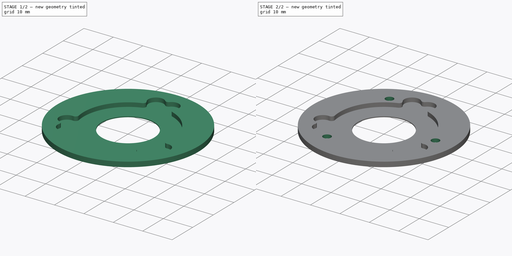
[diagram: build sequence overview — one tinted view per stage of 2, left to right]
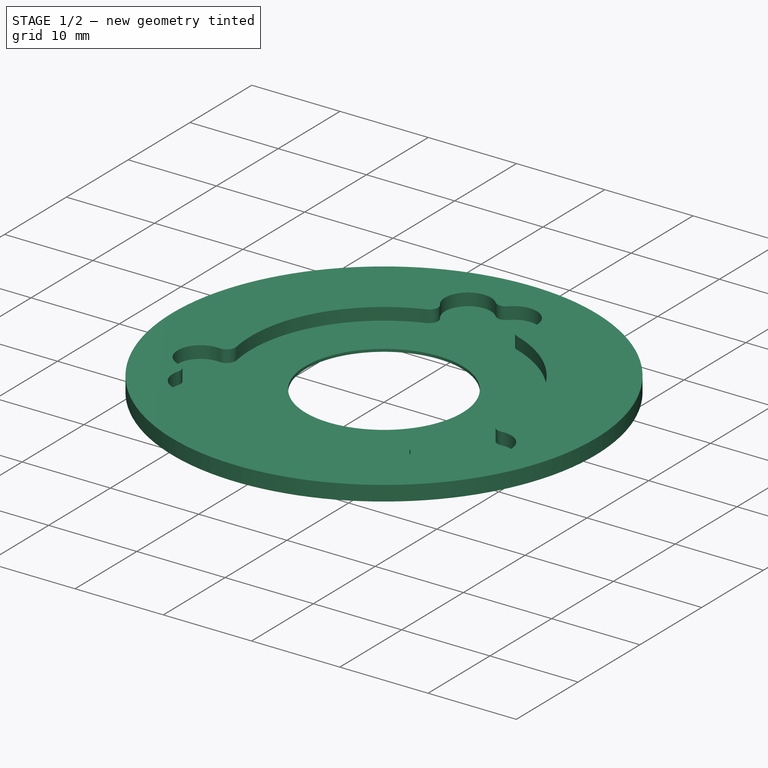
[diagram: stage 1 of 2 — iso view after this stage's code; geometry added in this stage tinted green]
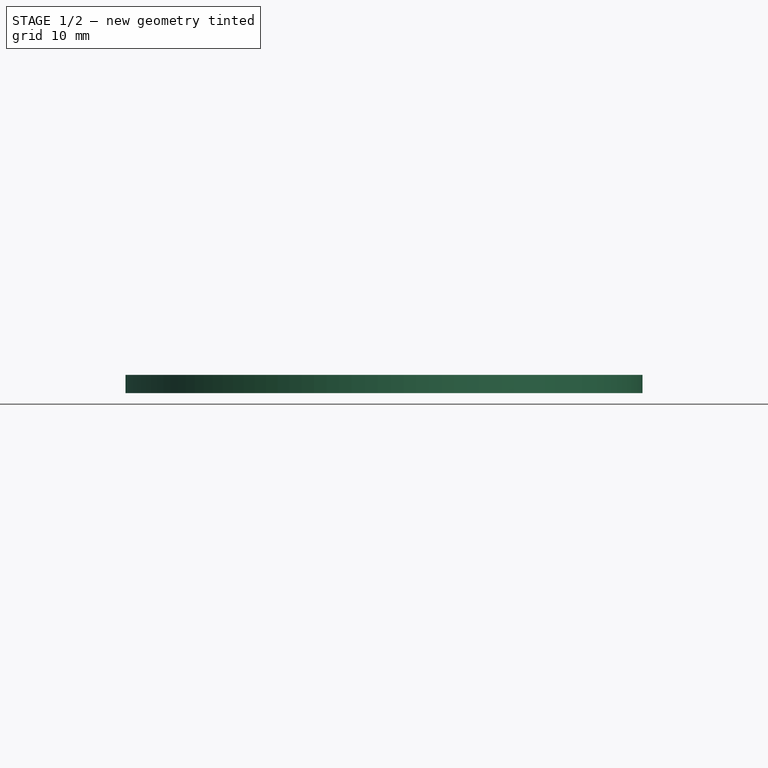
[diagram: stage 1 of 2 — front view after this stage's code; geometry added in this stage tinted green]
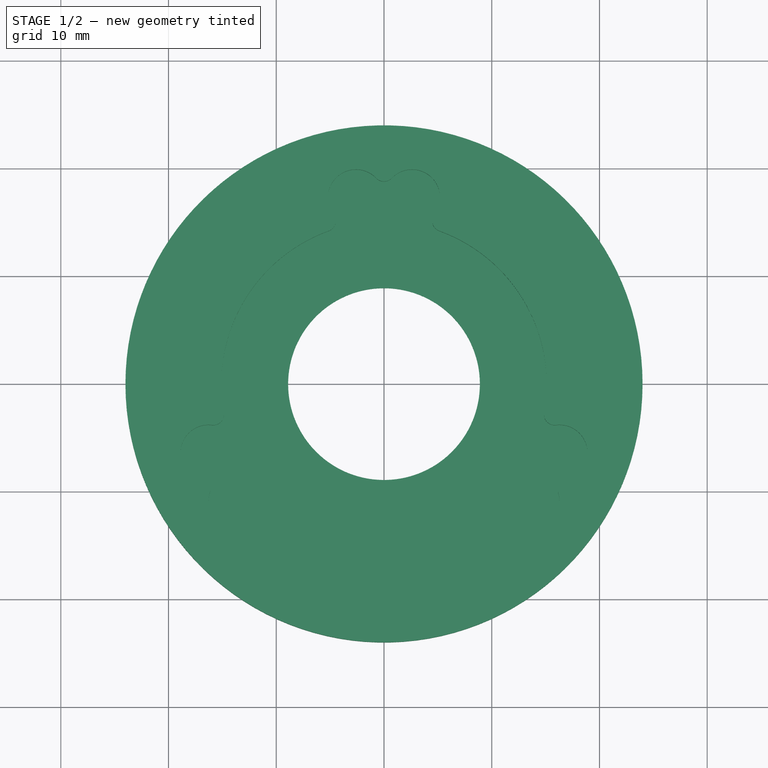
[diagram: stage 1 of 2 — top view after this stage's code; geometry added in this stage tinted green]
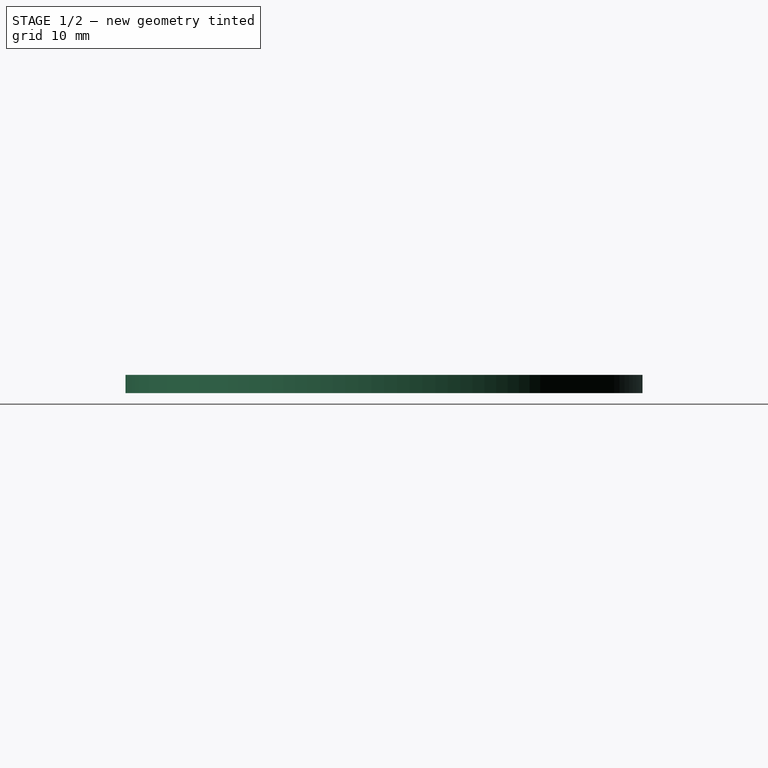
[diagram: stage 1 of 2 — right view after this stage's code; geometry added in this stage tinted green]
FCSTD DOCUMENT  (FreeCAD 0.22R37841 (Git))
Label: magcartrige
License: All rights reserved
LicenseURL: http://en.wikipedia.org/wiki/All_rights_reserved
objects: Sketcher::SketchObject×3, PartDesign::CoordinateSystem×2, PartDesign::Revolution×1, PartDesign::Pocket×1, PartDesign::Hole×1, PartDesign::Body×1, App::Part×1
note: 12 computed .brp shape members not serialized (recipe doc carries the construction recipe); baked Part::Feature solids carry a one-line shape summary decoded from their .brp

FEATURE [PartDesign::CoordinateSystem] LCS_Origin
  AttacherType = Attacher::AttachEngine3D
  AttachmentSupport = -> [X_Axis]
  MapMode = 2
FEATURE [PartDesign::CoordinateSystem] LCS_Origin001
  AttacherType = Attacher::AttachEngine3D
  AttachmentSupport = -> [X_Axis001]
  MapMode = 2
FEATURE [Sketcher::SketchObject] Sketch
  AttachmentSupport = -> [XZ_Plane001]
  FullyConstrained = true
  MapMode = 5
  Placement = pos=(0,0,0) rot=(1,0,0;1.5708rad)
  sketch-geometry (5):
    g0: LineSegment StartX=0 StartY=0 StartZ=0 EndX=0 EndY=1.7 EndZ=0
    g1: LineSegment StartX=8.9 StartY=0 StartZ=0 EndX=8.9 EndY=1.7 EndZ=0
    g2: LineSegment StartX=24 StartY=0 StartZ=0 EndX=8.9 EndY=0 EndZ=0
    g3: LineSegment StartX=24 StartY=1.7 StartZ=0 EndX=24 EndY=0 EndZ=0
    g4: LineSegment StartX=8.9 StartY=1.7 StartZ=0 EndX=24 EndY=1.7 EndZ=0
  constraints (15):
    c: Coincident(g0,g-1)
    c: PointOnObject(g0,g-2)
    c: PointOnObject(g1,g-1)
    c: PointOnObject(g2,g-1)
    c: Coincident(g2,g1)
    c: Vertical(g1)
    c: DistanceX(g0,g1) = 8.9
    c: DistanceX(g0,g2) = 24
    c: Coincident(g3,g2)
    c: Vertical(g3)
    c: Coincident(g4,g1)
    c: Horizontal(g4)
    c: DistanceY(g3,g3) = 1.7
    c: PointOnObject(g0,g4)
    c: Coincident(g4,g3)
FEATURE [PartDesign::Revolution] Revolution
  Angle = 360
  Angle2 = 60
  Axis = (0,2e-16,1)
  Base = (0,0,0)
  Placement = pos=(0,0,0) rot=(1,0,0;1.5708rad)
  Profile = -> Sketch
  ReferenceAxis = -> Sketch [V_Axis]
  Reversed = true
  Suppressed = false
  Type = 0
FEATURE [Sketcher::SketchObject] Sketch001
  AttachmentOffset = pos=(0,0,0.3) rot=(0,0,1;0rad)
  AttachmentSupport = -> [XY_Plane001]
  FullyConstrained = true
  MapMode = 5
  Placement = pos=(0,0,0.3) rot=(0,0,1;0rad)
  sketch-geometry (25):
    g0: LineSegment StartX=16.2872 StartY=-6.40122 StartZ=0 EndX=2.6 EndY=17.3058 EndZ=0
    g1: LineSegment StartX=2.6 StartY=17.3058 StartZ=0 EndX=-2.6 EndY=17.3058 EndZ=0
    g2: LineSegment StartX=-2.6 StartY=17.3058 StartZ=0 EndX=-16.2872 EndY=-6.40122 EndZ=0
    g3: LineSegment StartX=-16.2872 StartY=-6.40122 StartZ=0 EndX=-13.6872 EndY=-10.9046 EndZ=0
    g4: LineSegment StartX=-13.6872 StartY=-10.9046 StartZ=0 EndX=13.6872 EndY=-10.9046 EndZ=0
    g5: LineSegment StartX=13.6872 StartY=-10.9046 StartZ=0 EndX=16.2872 EndY=-6.40122 EndZ=0
    g6: Circle CenterX=0 CenterY=0 CenterZ=0 NormalX=0 NormalY=0 NormalZ=1 AngleXU=0 Radius=17.5
    g7: ArcOfCircle CenterX=-16.2872 CenterY=-6.40122 CenterZ=0 NormalX=0 NormalY=0 NormalZ=1 AngleXU=0 Radius=2.6 StartAngle=1.44895 EndAngle=4.4722
    g8: ArcOfCircle CenterX=-17.1436 CenterY=-9.89788 CenterZ=0 NormalX=0 NormalY=0 NormalZ=1 AngleXU=0 Radius=1 StartAngle=5.99977 EndAngle=7.61379
    g9: ArcOfCircle CenterX=-15.8497 CenterY=-2.82791 CenterZ=0 NormalX=0 NormalY=0 NormalZ=1 AngleXU=0 Radius=1 StartAngle=4.59055 EndAngle=6.45975
    g10: ArcOfCircle CenterX=0 CenterY=0 CenterZ=0 NormalX=0 NormalY=0 NormalZ=1 AngleXU=0 Radius=15.1 StartAngle=1.91783 EndAngle=3.31816
    g11: ArcOfCircle CenterX=-2.6 CenterY=17.3058 CenterZ=0 NormalX=0 NormalY=0 NormalZ=1 AngleXU=0 Radius=2.6 StartAngle=0.763786 EndAngle=3.78703
    g12: ArcOfCircle CenterX=-5.4758 CenterY=15.1402 CenterZ=0 NormalX=0 NormalY=0 NormalZ=1 AngleXU=0 Radius=1 StartAngle=5.05943 EndAngle=6.92863
    g13: ArcOfCircle CenterX=2.6 CenterY=17.3058 CenterZ=0 NormalX=0 NormalY=0 NormalZ=1 AngleXU=0 Radius=2.6 StartAngle=5.63774 EndAngle=8.66099
    g14: ArcOfCircle CenterX=0 CenterY=0 CenterZ=0 NormalX=0 NormalY=0 NormalZ=1 AngleXU=0 Radius=15.1 StartAngle=6.10662 EndAngle=7.50695
    g15: ArcOfCircle CenterX=16.2872 CenterY=-6.40122 CenterZ=0 NormalX=0 NormalY=0 NormalZ=1 AngleXU=0 Radius=2.6 StartAngle=4.95258 EndAngle=7.97582
    g16: ArcOfCircle CenterX=13.6872 CenterY=-10.9046 CenterZ=0 NormalX=0 NormalY=0 NormalZ=1 AngleXU=0 Radius=2.6 StartAngle=3.54335 EndAngle=6.5666
    g17: ArcOfCircle CenterX=0 CenterY=0 CenterZ=0 NormalX=0 NormalY=0 NormalZ=1 AngleXU=0 Radius=15.1 StartAngle=4.01223 EndAngle=5.41255
    g18: ArcOfCircle CenterX=-13.6872 CenterY=-10.9046 CenterZ=0 NormalX=0 NormalY=0 NormalZ=1 AngleXU=0 Radius=2.6 StartAngle=2.85818 EndAngle=5.88143
    g19: ArcOfCircle CenterX=-3.2e-15 CenterY=19.7958 CenterZ=0 NormalX=0 NormalY=0 NormalZ=1 AngleXU=0 Radius=1 StartAngle=3.90538 EndAngle=5.5194
    g20: ArcOfCircle CenterX=5.4758 CenterY=15.1402 CenterZ=0 NormalX=0 NormalY=0 NormalZ=1 AngleXU=0 Radius=1 StartAngle=2.49615 EndAngle=4.36535
    g21: ArcOfCircle CenterX=15.8497 CenterY=-2.82791 CenterZ=0 NormalX=0 NormalY=0 NormalZ=1 AngleXU=0 Radius=1 StartAngle=2.96503 EndAngle=4.83423
    g22: ArcOfCircle CenterX=17.1436 CenterY=-9.89788 CenterZ=0 NormalX=0 NormalY=0 NormalZ=1 AngleXU=0 Radius=1 StartAngle=1.81098 EndAngle=3.425
    g23: ArcOfCircle CenterX=10.3739 CenterY=-12.3123 CenterZ=0 NormalX=0 NormalY=0 NormalZ=1 AngleXU=0 Radius=1 StartAngle=0.401757 EndAngle=2.27096
    g24: ArcOfCircle CenterX=-10.3739 CenterY=-12.3123 CenterZ=0 NormalX=0 NormalY=0 NormalZ=1 AngleXU=0 Radius=1 StartAngle=0.870635 EndAngle=2.73984
  constraints (65):
    c: Coincident(g0,g1)
    c: Coincident(g1,g2)
    c: Coincident(g2,g3)
    c: Coincident(g3,g4)
    c: Coincident(g4,g5)
    c: Coincident(g5,g0)
    c: PointOnObject(g0,g6)
    c: PointOnObject(g1,g6)
    c: PointOnObject(g2,g6)
    c: PointOnObject(g3,g6)
    c: PointOnObject(g4,g6)
    c: Coincident(g6,g-1)
    c: Diameter(g6) = 35
    c: Coincident(g7,g2)
    c: Coincident(g10,g6)
    c: Coincident(g11,g1)
    c: Tangent(g11,g12) = 1.5708
    c: Tangent(g10,g12) = 1.5708
    c: Coincident(g13,g0)
    c: Coincident(g14,g6)
    c: Coincident(g15,g0)
    c: Coincident(g16,g4)
    c: Coincident(g17,g6)
    c: Coincident(g18,g3)
    c: Tangent(g8,g7) = 1.5708
    c: Tangent(g9,g10) = 1.5708
    c: Tangent(g9,g7) = 1.5708
    c: Tangent(g11,g19) = 1.5708
    c: Tangent(g13,g20) = 1.5708
    c: Tangent(g14,g20) = 1.5708
    c: Tangent(g14,g21) = 1.5708
    c: Tangent(g15,g21) = 1.5708
    c: Tangent(g15,g22) = 1.5708
    c: Tangent(g16,g23) = 1.5708
    c: Tangent(g17,g23) = 1.5708
    c: Tangent(g17,g24) = 1.5708
    c: Tangent(g18,g24) = 1.5708
    c: Equal(g8,g9)
    c: Equal(g23,g24)
    c: Radius(g7) = 2.6
    c: Radius(g8) = 1
    c: Equal(g7,g11)
    c: Equal(g11,g13)
    c: Equal(g13,g15)
    c: Equal(g15,g16)
    c: Equal(g16,g18)
    c: Horizontal(g1)
    c: Tangent(g19,g13) = 1.5708
    c: PointOnObject(g0,g6)
    c: Horizontal(g4)
    c: Tangent(g13,g11)
    c: Tangent(g8,g18) = 1.5708
    c: Tangent(g16,g22) = 1.5708
    c: Tangent(g7,g18)
    c: Tangent(g15,g16)
    c: Equal(g2,g4)
    c: Equal(g17,g10)
    c: Equal(g10,g14)
    c: Equal(g8,g24)
    c: Equal(g23,g22)
    c: Equal(g22,g21)
    c: Equal(g9,g12)
    c: Equal(g12,g20)
    c: Equal(g19,g12)
    c: Radius(g14) = 15.1
FEATURE [PartDesign::Pocket] Pocket
  BaseFeature = -> Revolution
  Direction = (0,0,-1)
  Length = 5.2
  Length2 = 5
  Placement = pos=(0,0,0) rot=(1,0,0;1.5708rad)
  Profile = -> Sketch001
  ReferenceAxis = -> Sketch001 [N_Axis]
  Reversed = true
  Suppressed = false
  Type = 0
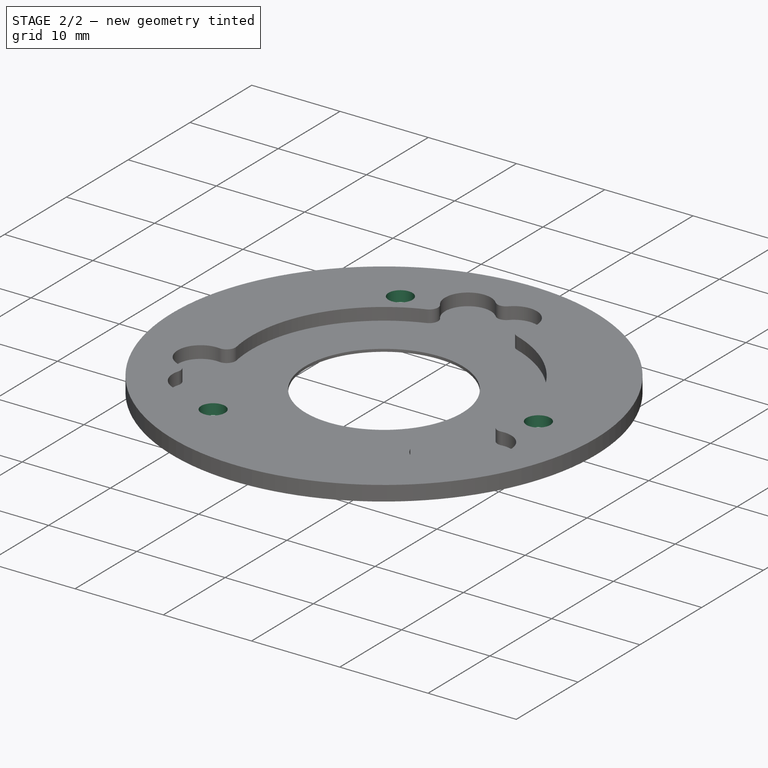
[diagram: stage 2 of 2 — iso view after this stage's code; geometry added in this stage tinted green]
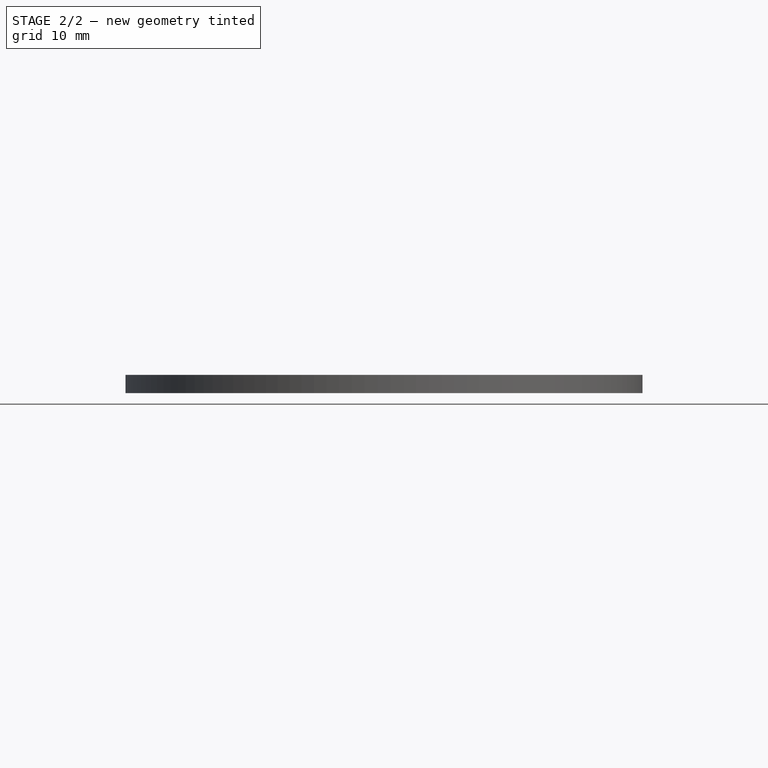
[diagram: stage 2 of 2 — front view after this stage's code; geometry added in this stage tinted green]
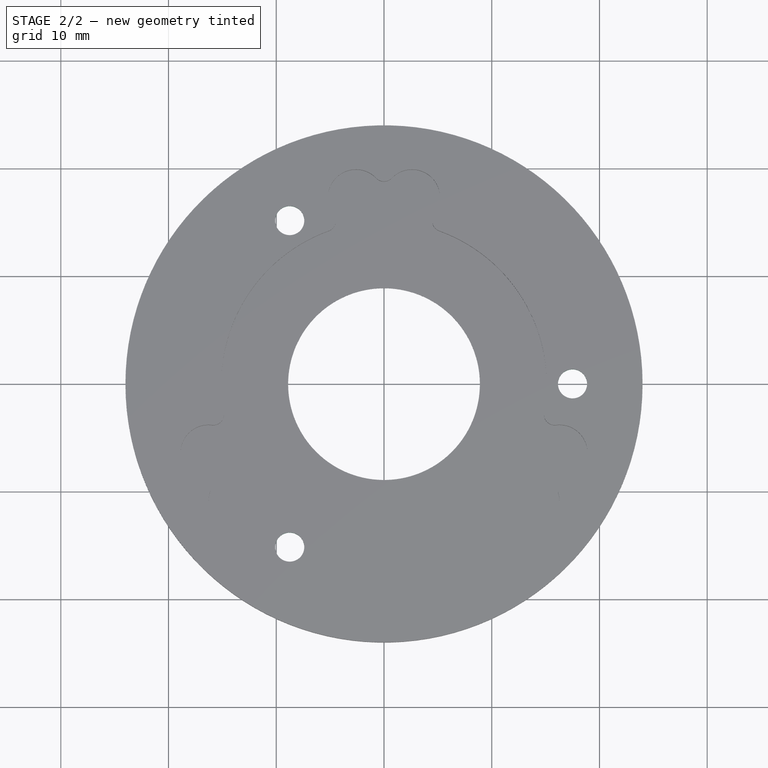
[diagram: stage 2 of 2 — top view after this stage's code; geometry added in this stage tinted green]
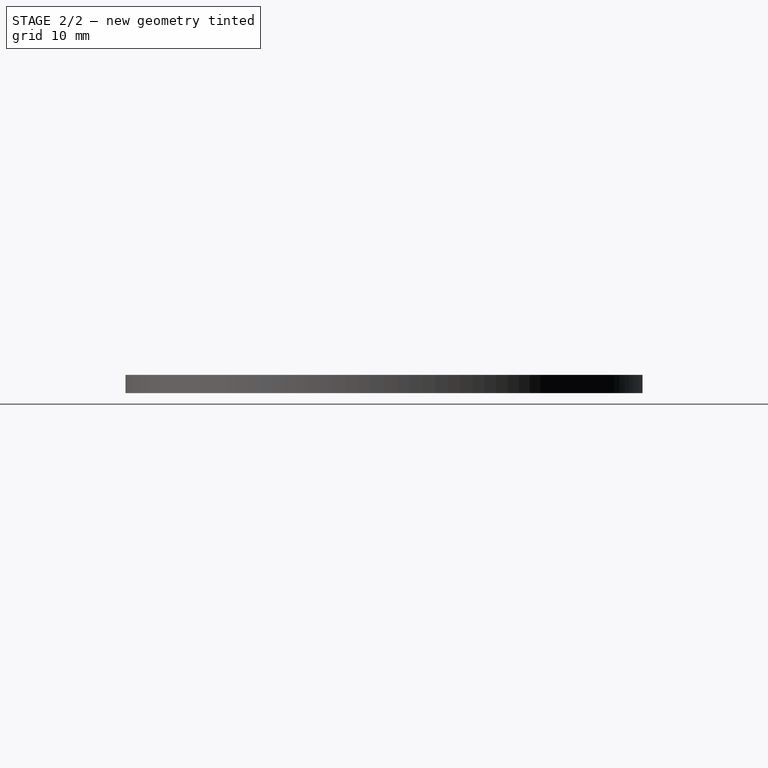
[diagram: stage 2 of 2 — right view after this stage's code; geometry added in this stage tinted green]
FEATURE [Sketcher::SketchObject] Sketch002
  AttachmentSupport = -> [XY_Plane001]
  FullyConstrained = true
  MapMode = 5
  sketch-geometry (7):
    g0: Circle CenterX=0 CenterY=0 CenterZ=0 NormalX=0 NormalY=0 NormalZ=1 AngleXU=0 Radius=17.5
    g1: Circle CenterX=-8.75 CenterY=15.1554 CenterZ=0 NormalX=0 NormalY=0 NormalZ=1 AngleXU=0 Radius=1.35
    g2: Circle CenterX=-8.75 CenterY=-15.1554 CenterZ=0 NormalX=0 NormalY=0 NormalZ=1 AngleXU=0 Radius=1.35
    g3: Circle CenterX=17.5 CenterY=1.034e-13 CenterZ=0 NormalX=0 NormalY=0 NormalZ=1 AngleXU=0 Radius=1.35
    g4: LineSegment StartX=0 StartY=0 StartZ=0 EndX=17.5 EndY=1.034e-13 EndZ=0
    g5: LineSegment StartX=0 StartY=0 StartZ=0 EndX=-8.75 EndY=15.1554 EndZ=0
    g6: LineSegment StartX=-8.75 StartY=-15.1554 StartZ=0 EndX=0 EndY=0 EndZ=0
  constraints (17):
    c: Coincident(g0,g-1)
    c: PointOnObject(g2,g0)
    c: PointOnObject(g3,g0)
    c: Equal(g1,g2)
    c: Equal(g1,g3)
    c: Diameter(g0) = 35
    c: Diameter(g3) = 2.7
    c: Coincident(g4,g0)
    c: Coincident(g4,g3)
    c: Coincident(g5,g0)
    c: Coincident(g5,g1)
    c: Coincident(g6,g2)
    c: Coincident(g6,g0)
    c: PointOnObject(g1,g0)
    c: Angle(g6,g4) = 2.0944
    c: Angle(g4,g5) = 2.0944
    c: Angle(g-2,g5) = 0.523599
FEATURE [PartDesign::Hole] Hole
  BaseFeature = -> Pocket
  CustomThreadClearance = 0
  Depth = 136.998
  DepthType = 1
  Diameter = 2.7
  DrillForDepth = false
  DrillPoint = 1
  DrillPointAngle = 118
  HoleCutCountersinkAngle = 90
  HoleCutCustomValues = false
  HoleCutDepth = 0.7
  HoleCutDiameter = 4.7
  HoleCutType = 1
  ModelThread = false
  Placement = pos=(0,0,0) rot=(1,0,0;1.5708rad)
  Profile = -> Sketch002
  Reversed = true
  Suppressed = false
  Tapered = false
  TaperedAngle = 90
  ThreadClass = 0
  ThreadDepth = 136.998
  ThreadDepthType = 0
  ThreadDirection = 0
  ThreadFit = 1
  ThreadSize = 8
  ThreadType = 1
  Threaded = false
  UseCustomThreadClearance = false
FEATURE [PartDesign::Body] Body
  AllowCompound = false
  Group = -> [LCS_Origin001,Sketch,Revolution,Sketch001,Pocket,Sketch002,Hole]
  Origin = -> Origin001
  Tip = -> Hole
FEATURE [App::Part] Part
  Group = -> [LCS_Origin,Body]
  Origin = -> Origin
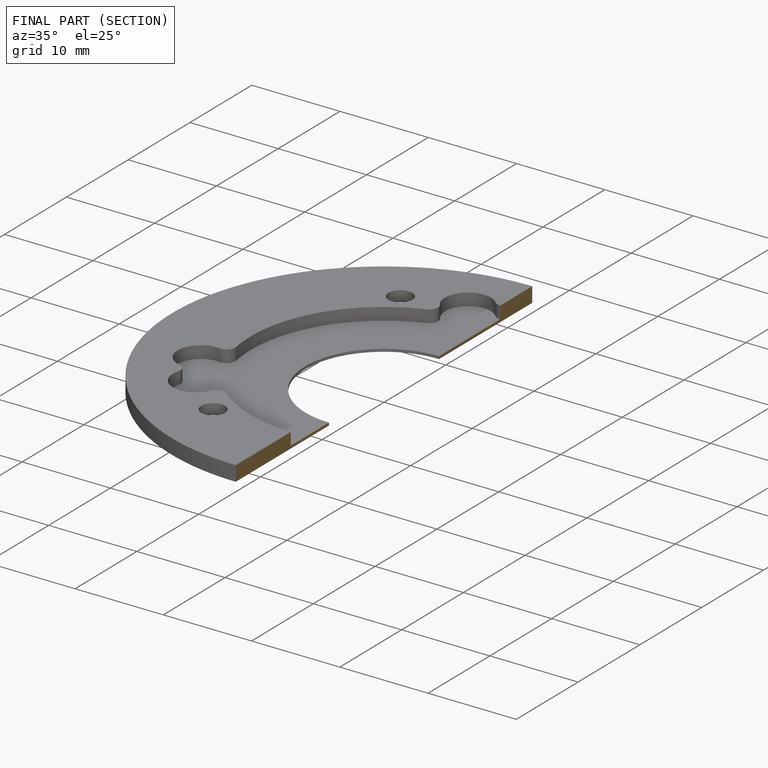
[diagram: finished part — half-section view (interior)]
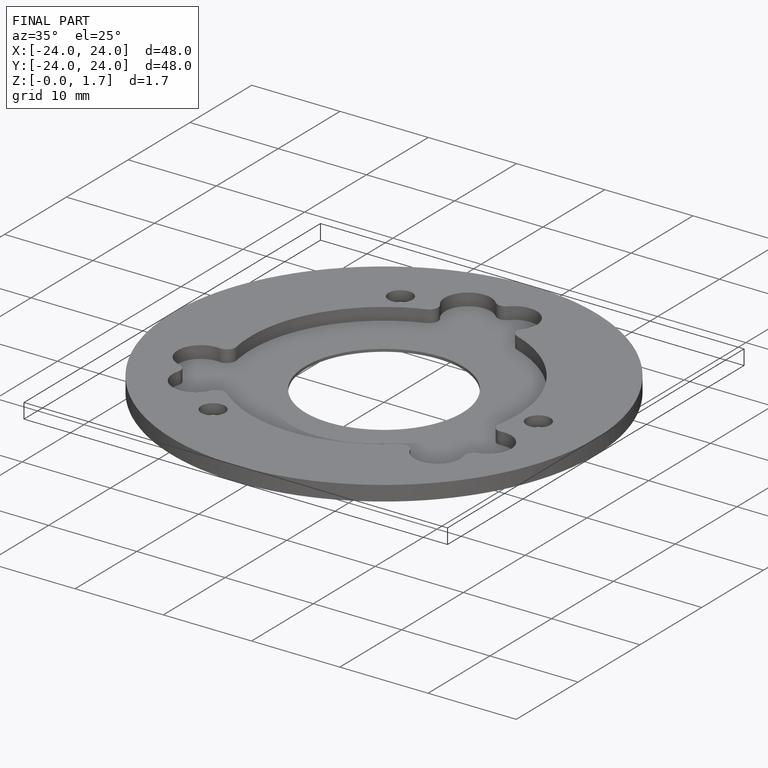
[diagram: finished part — iso view with bounding-box wireframe]
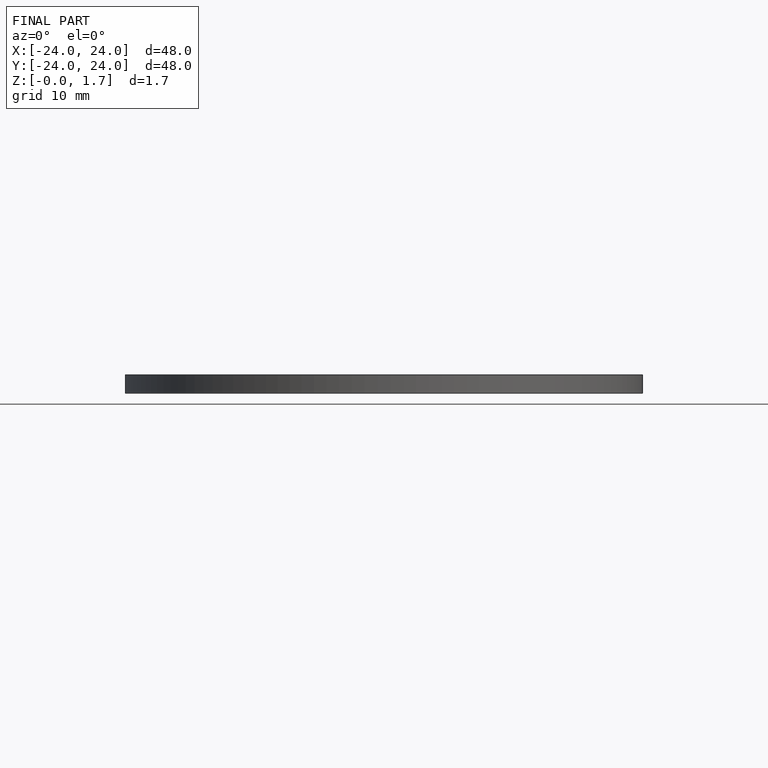
[diagram: finished part — front view with bounding-box wireframe]
